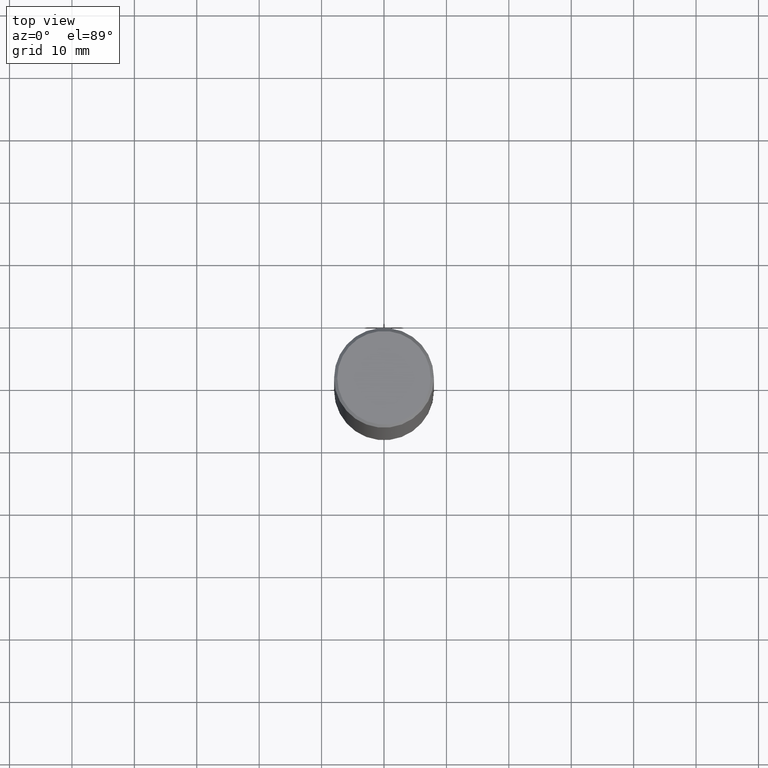
[diagram: clean part render]
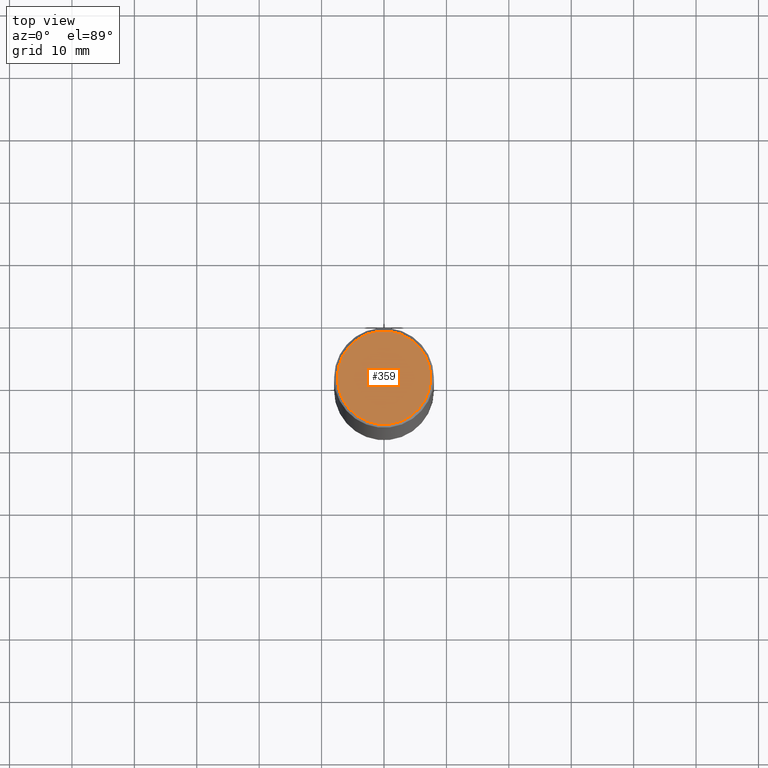
[diagram: same view with one face highlighted and labeled with its STEP entity id]
A machine part, top view. The second image highlights one B-rep face of the part: STEP entity #359.
In plain terms, the highlighted planar face has unit normal (0, -0, -1).
Its self-contained STEP definition (entity closure, byte-faithful):
#4 = DIRECTION ( 'NONE',  ( 1.000000000000000000, -6.982962677686267499E-15, 4.876053491004738270E-29 ) ) ;
#3 = FACE_OUTER_BOUND ( 'NONE', #91, .T. ) ;
#7 = CARTESIAN_POINT ( 'NONE',  ( -2.087702828670439639E-46, 2.980686340760894400E-32, 8.537024980200822558E-18 ) ) ;
#42 = CARTESIAN_POINT ( 'NONE',  ( -2.087702828670439639E-46, 2.980686340760894400E-32, 8.537024980200822558E-18 ) ) ;
#78 = CARTESIAN_POINT ( 'NONE',  ( -0.2949499999999997679, 2.094539655171994135E-15, 8.537024980186296424E-18 ) ) ;
#79 = CARTESIAN_POINT ( 'NONE',  ( 2.059624841783562486E-15, 0.2949499999999997679, -1.025543908401684563E-15 ) ) ;
#80 = ORIENTED_EDGE ( 'NONE', *, *, #210, .T. ) ;
#91 = EDGE_LOOP ( 'NONE', ( #125, #80 ) ) ;
#100 = VERTEX_POINT ( 'NONE', #78 ) ;
#110 = DIRECTION ( 'NONE',  ( -1.000000000000000000, 6.982962677686265922E-15, -4.876176775795935793E-29 ) ) ;
#118 = CIRCLE ( 'NONE', #128, 0.2949499999999997679 ) ;
#125 = ORIENTED_EDGE ( 'NONE', *, *, #290, .T. ) ;
#128 = AXIS2_PLACEMENT_3D ( 'NONE', #42, #349, #352 ) ;
#152 = VERTEX_POINT ( 'NONE', #163 ) ;
#154 = DIRECTION ( 'NONE',  ( -2.445468806185136597E-29, 3.491481338843145583E-15, 1.000000000000000000 ) ) ;
#162 = PLANE ( 'NONE',  #331 ) ;
#163 = CARTESIAN_POINT ( 'NONE',  ( 0.2949499999999997679, -2.127023677808858891E-15, 8.537024980215462707E-18 ) ) ;
#176 = AXIS2_PLACEMENT_3D ( 'NONE', #7, #154, #4 ) ;
#190 = CIRCLE ( 'NONE', #176, 0.2949499999999997679 ) ;
#210 = EDGE_CURVE ( 'NONE', #152, #100, #118, .T. ) ;
#272 = DIRECTION ( 'NONE',  ( 2.438088387897960049E-29, -3.491481338843145188E-15, -1.000000000000000000 ) ) ;
#290 = EDGE_CURVE ( 'NONE', #100, #152, #190, .T. ) ;
#331 = AXIS2_PLACEMENT_3D ( 'NONE', #79, #272, #110 ) ;
#349 = DIRECTION ( 'NONE',  ( -2.445468806185136597E-29, 3.491481338843145583E-15, 1.000000000000000000 ) ) ;
#352 = DIRECTION ( 'NONE',  ( 1.000000000000000000, -6.982962677686267499E-15, 4.876053491004738270E-29 ) ) ;
#359 = ADVANCED_FACE ( 'NONE', ( #3 ), #162, .F. ) ;